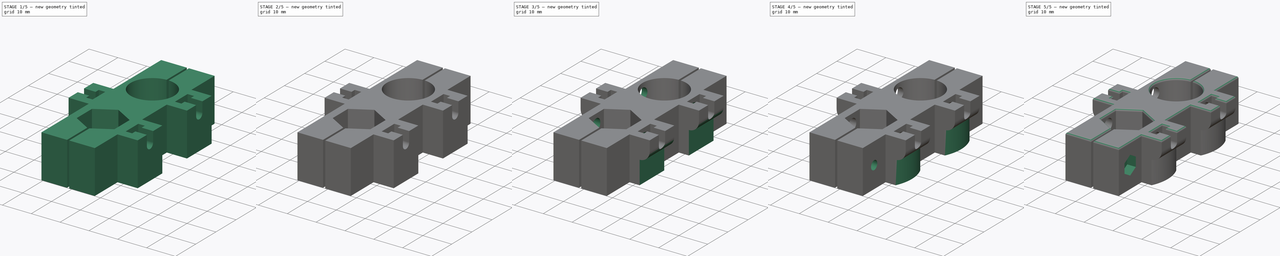
[diagram: build sequence overview — one tinted view per stage of 5, left to right]
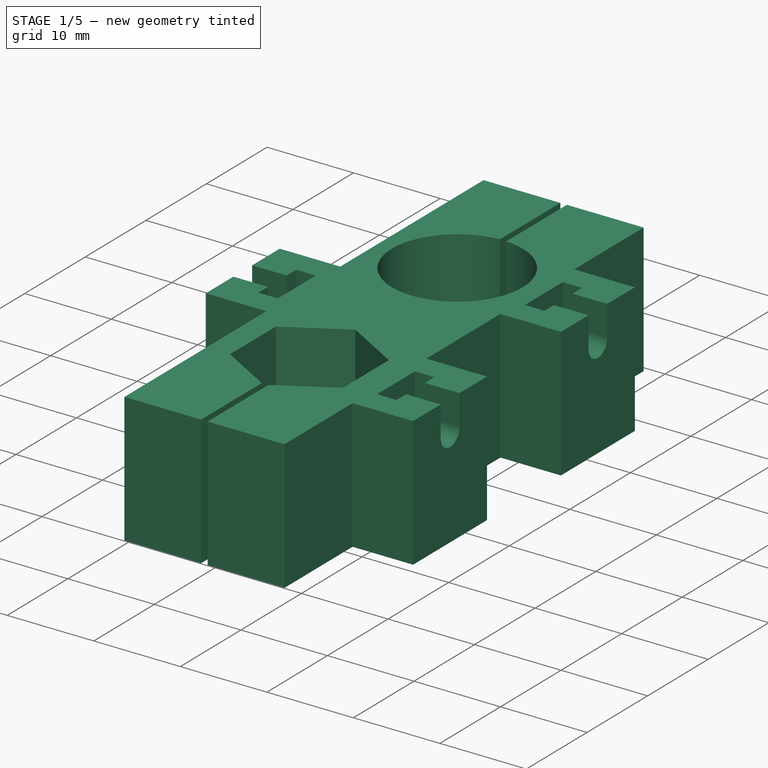
[diagram: stage 1 of 5 — iso view after this stage's code; geometry added in this stage tinted green]
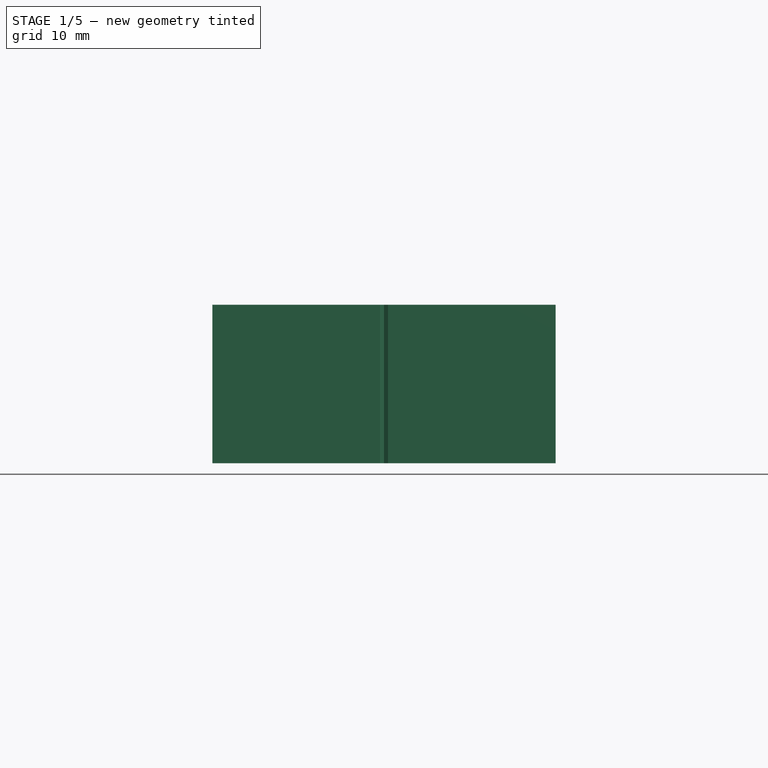
[diagram: stage 1 of 5 — front view after this stage's code; geometry added in this stage tinted green]
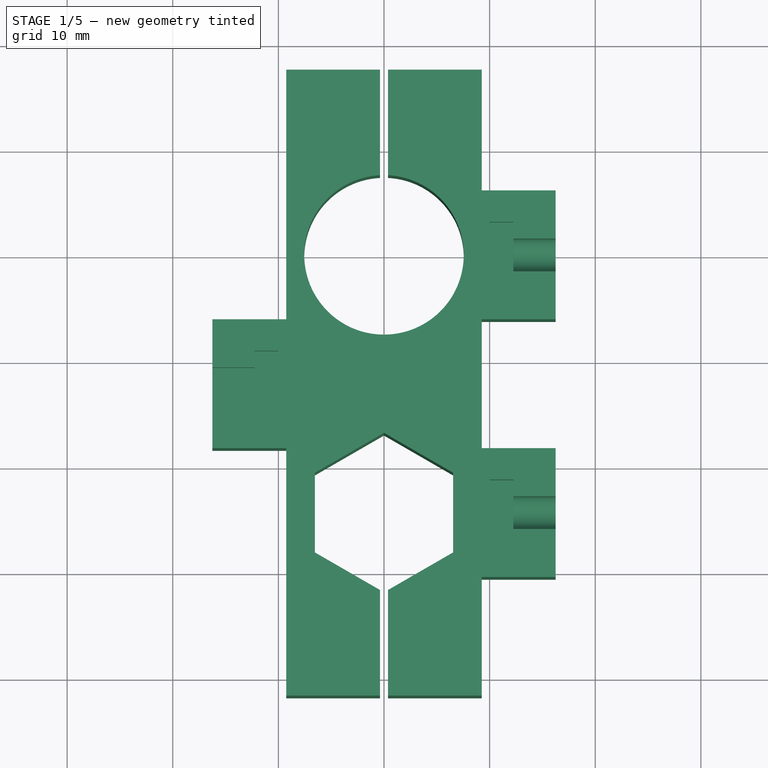
[diagram: stage 1 of 5 — top view after this stage's code; geometry added in this stage tinted green]
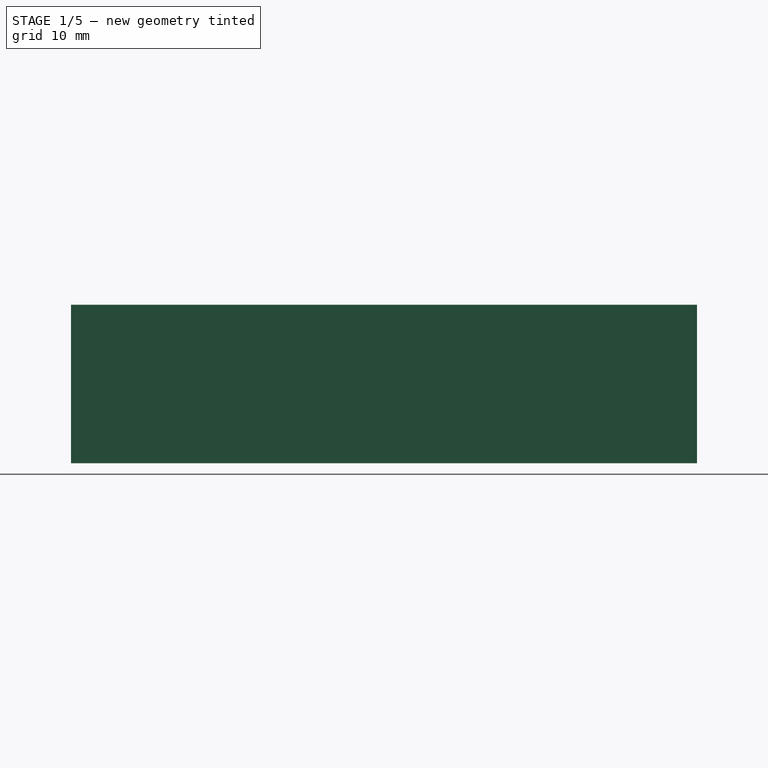
[diagram: stage 1 of 5 — right view after this stage's code; geometry added in this stage tinted green]
FCSTD DOCUMENT  (FreeCAD 0.16RUnknown)
Label: nut-and-bearing-mount.001
License: All rights reserved
LicenseURL: http://en.wikipedia.org/wiki/All_rights_reserved
objects: Sketcher::SketchObject×13, PartDesign::Pocket×11, Part::Extrusion×2, Part::MultiFuse×1, Part::Fillet×1
note: 39 computed .brp shape members not serialized (recipe doc carries the construction recipe); baked Part::Feature solids carry a one-line shape summary decoded from their .brp

FEATURE [Sketcher::SketchObject] Sketch
  sketch-geometry (41):
    g0: Circle [constr] CenterX=0 CenterY=-24.4 CenterZ=0 NormalX=0 NormalY=0 NormalZ=1 Radius=7.55
    g1: LineSegment StartX=-6.53849 StartY=-28.175 StartZ=0 EndX=-6.53849 EndY=-20.625 EndZ=0
    g2: LineSegment StartX=-6.53849 StartY=-20.625 StartZ=0 EndX=0 EndY=-16.85 EndZ=0
    g3: LineSegment StartX=0 StartY=-16.85 StartZ=0 EndX=6.53849 EndY=-20.625 EndZ=0
    g4: LineSegment StartX=6.53849 StartY=-20.625 StartZ=0 EndX=6.53849 EndY=-28.175 EndZ=0
    g5: LineSegment StartX=6.53849 StartY=-28.175 StartZ=0 EndX=0.375 EndY=-31.7335 EndZ=0
    g6: LineSegment [constr] StartX=0.375 StartY=-31.7335 StartZ=0 EndX=0 EndY=-31.95 EndZ=0
    g7: LineSegment [constr] StartX=0 StartY=-31.95 StartZ=0 EndX=-0.375 EndY=-31.7335 EndZ=0
    g8: LineSegment StartX=-0.375 StartY=-31.7335 StartZ=0 EndX=-6.53849 EndY=-28.175 EndZ=0
    g9: LineSegment [constr] StartX=-0.375 StartY=-31.7335 StartZ=0 EndX=0.375 EndY=-31.7335 EndZ=0
    g10: ArcOfCircle CenterX=0 CenterY=0 CenterZ=0 NormalX=0 NormalY=0 NormalZ=1 Radius=7.55 StartAngle=1.62049 EndAngle=7.80429
    g11: ArcOfCircle [constr] CenterX=0 CenterY=0 CenterZ=0 NormalX=0 NormalY=0 NormalZ=1 Radius=7.55 StartAngle=1.52111 EndAngle=1.62049
    g12: LineSegment [constr] StartX=-0.375 StartY=7.54068 StartZ=0 EndX=0.375 EndY=7.54068 EndZ=0
    g13: LineSegment StartX=-0.375 StartY=7.54068 StartZ=0 EndX=-0.375 EndY=17.5407 EndZ=0
    g14: LineSegment StartX=-0.375 StartY=17.5407 StartZ=0 EndX=-9.25 EndY=17.5407 EndZ=0
    g15: LineSegment StartX=-9.25 StartY=17.5407 StartZ=0 EndX=-9.25 EndY=-6.1 EndZ=0
    g16: LineSegment StartX=-9.25 StartY=-6.1 StartZ=0 EndX=-16.25 EndY=-6.1 EndZ=0
    g17: LineSegment StartX=-16.25 StartY=-6.1 StartZ=0 EndX=-16.25 EndY=-18.3 EndZ=0
    g18: LineSegment StartX=-16.25 StartY=-18.3 StartZ=0 EndX=-9.25 EndY=-18.3 EndZ=0
    g19: LineSegment StartX=-9.25 StartY=-18.3 StartZ=0 EndX=-9.25 EndY=-41.7335 EndZ=0
    g20: LineSegment StartX=-9.25 StartY=-41.7335 StartZ=0 EndX=-0.375 EndY=-41.7335 EndZ=0
    g21: LineSegment StartX=-0.375 StartY=-41.7335 StartZ=0 EndX=-0.375 EndY=-31.7335 EndZ=0
    g22: LineSegment StartX=0.375 StartY=7.54068 StartZ=0 EndX=0.375 EndY=17.5407 EndZ=0
    g23: LineSegment StartX=0.375 StartY=17.5407 StartZ=0 EndX=9.25 EndY=17.5407 EndZ=0
    g24: LineSegment StartX=9.25 StartY=17.5407 StartZ=0 EndX=9.25 EndY=6.1 EndZ=0
    g25: LineSegment StartX=9.25 StartY=6.1 StartZ=0 EndX=16.25 EndY=6.1 EndZ=0
    g26: LineSegment StartX=16.25 StartY=6.1 StartZ=0 EndX=16.25 EndY=-6.1 EndZ=0
    g27: LineSegment StartX=16.25 StartY=-6.1 StartZ=0 EndX=9.25 EndY=-6.1 EndZ=0
    g28: LineSegment StartX=9.25 StartY=-6.1 StartZ=0 EndX=9.25 EndY=-18.3 EndZ=0
    g29: LineSegment StartX=9.25 StartY=-18.3 StartZ=0 EndX=16.25 EndY=-18.3 EndZ=0
    g30: LineSegment StartX=16.25 StartY=-18.3 StartZ=0 EndX=16.25 EndY=-30.5 EndZ=0
    g31: LineSegment StartX=16.25 StartY=-30.5 StartZ=0 EndX=9.25 EndY=-30.5 EndZ=0
    g32: LineSegment StartX=9.25 StartY=-30.5 StartZ=0 EndX=9.25 EndY=-41.7335 EndZ=0
    g33: LineSegment StartX=9.25 StartY=-41.7335 StartZ=0 EndX=0.375 EndY=-41.7335 EndZ=0
    g34: LineSegment StartX=0.375 StartY=-41.7335 StartZ=0 EndX=0.375 EndY=-31.7335 EndZ=0
    g35: LineSegment [constr] StartX=-9.25 StartY=-6.1 StartZ=0 EndX=9.25 EndY=-6.1 EndZ=0
    g36: LineSegment [constr] StartX=9.25 StartY=-18.3 StartZ=0 EndX=-9.25 EndY=-18.3 EndZ=0
    g37: LineSegment [constr] StartX=9.25 StartY=6.1 StartZ=0 EndX=0 EndY=0 EndZ=0
    g38: LineSegment [constr] StartX=0 StartY=0 StartZ=0 EndX=9.25 EndY=-6.1 EndZ=0
    g39: LineSegment [constr] StartX=9.25 StartY=-18.3 StartZ=0 EndX=0 EndY=-24.4 EndZ=0
    g40: LineSegment [constr] StartX=0 StartY=-24.4 StartZ=0 EndX=9.25 EndY=-30.5 EndZ=0
  constraints (114):
    c: Vertical(g1)
    c: Coincident(g1,g2)
    c: Coincident(g2,g3)
    c: Coincident(g3,g4)
    c: Vertical(g4)
    c: Coincident(g4,g5)
    c: Coincident(g5,g6)
    c: Coincident(g6,g7)
    c: Coincident(g7,g8)
    c: Coincident(g1,g8)
    c: Horizontal(g9)
    c: Coincident(g5,g9)
    c: Coincident(g7,g9)
    c: Parallel(g7,g8)
    c: Parallel(g6,g5)
    c: PointOnObject(g1,g0)
    c: PointOnObject(g1,g0)
    c: PointOnObject(g2,g0)
    c: PointOnObject(g3,g0)
    c: PointOnObject(g4,g0)
    c: PointOnObject(g6,g0)
    c: Equal(g1,g2)
    c: Equal(g2,g3)
    c: Equal(g3,g4)
    c: Equal(g8,g5)
    c: PointOnObject(g0,g-2)
    c: DistanceX(g9,g9) = 0.75
    c: Coincident(g10,g11)
    c: Coincident(g10,g11)
    c: Coincident(g10,g11)
    c: Coincident(g10,g-1)
    c: Horizontal(g12)
    c: Coincident(g10,g12)
    c: Coincident(g10,g12)
    c: Equal(g12,g9)
    c: Radius(g10) = 7.55
    c: Equal(g10,g0)
    c: Vertical(g13)
    c: Coincident(g13,g14)
    c: Horizontal(g14)
    c: Coincident(g14,g15)
    c: Vertical(g15)
    c: Coincident(g15,g16)
    c: Horizontal(g16)
    c: Coincident(g16,g17)
    c: Vertical(g17)
    c: Coincident(g17,g18)
    c: Horizontal(g18)
    c: Coincident(g18,g19)
    c: Vertical(g19)
    c: Coincident(g19,g20)
    c: Horizontal(g20)
    c: Coincident(g20,g21)
    c: Vertical(g21)
    c: Coincident(g7,g21)
    c: Coincident(g10,g13)
    c: Vertical(g22)
    c: Coincident(g22,g23)
    c: Horizontal(g23)
    c: Coincident(g23,g24)
    c: Vertical(g24)
    c: Coincident(g24,g25)
    c: Horizontal(g25)
    c: Coincident(g25,g26)
    c: Vertical(g26)
    c: Coincident(g26,g27)
    c: Horizontal(g27)
    c: Coincident(g27,g28)
    c: Vertical(g28)
    c: Coincident(g28,g29)
    c: Horizontal(g29)
    c: Coincident(g29,g30)
    c: Vertical(g30)
    c: Coincident(g30,g31)
    c: Horizontal(g31)
    c: Coincident(g31,g32)
    c: Vertical(g32)
    c: Coincident(g32,g33)
    c: Coincident(g33,g34)
    c: Vertical(g34)
    c: Coincident(g5,g34)
    c: Horizontal(g33)
    c: Equal(g21,g34)
    c: Equal(g13,g22)
    c: Coincident(g10,g22)
    c: Equal(g30,g26)
    c: Equal(g26,g17)
    c: DistanceY(g26,g26) = 12.2
    c: Equal(g29,g25)
    c: Equal(g25,g16)
    c: DistanceX(g25,g25) = 7
    c: Horizontal(g35)
    c: Horizontal(g36)
    c: Coincident(g28,g36)
    c: Coincident(g27,g35)
    c: Coincident(g15,g35)
    c: Coincident(g18,g36)
    c: Equal(g18,g16)
    c: Equal(g29,g31)
    c: Equal(g25,g27)
    c: Coincident(g37,g38)
    c: Coincident(g39,g40)
    c: Equal(g40,g39)
    c: Equal(g38,g37)
    c: Coincident(g10,g37)
    c: Coincident(g24,g37)
    c: Coincident(g27,g38)
    c: Coincident(g28,g39)
    c: Coincident(g0,g39)
    c: Coincident(g31,g40)
    c: DistanceX(g36,g36) = 18.5
    c: Equal(g20,g33)
    c: Equal(g34,g22)
    c: DistanceY(g13,g13) = 10
FEATURE [Part::Extrusion] Extrude
  Base = -> Sketch
  Dir = (0,0,15)
  Solid = true
FEATURE [Sketcher::SketchObject] Sketch001
  ExternalGeometry = -> [Extrude]
  Placement = pos=(0,0,15) rot=(0,0,1;0rad)
  Support = -> Extrude [Face31]
  sketch-geometry (30):
    g0: LineSegment StartX=16.25 StartY=1.55 StartZ=0 EndX=12.25 EndY=1.55 EndZ=0
    g1: LineSegment StartX=12.25 StartY=1.55 StartZ=0 EndX=12.25 EndY=3.125 EndZ=0
    g2: LineSegment StartX=12.25 StartY=3.125 StartZ=0 EndX=10 EndY=3.125 EndZ=0
    g3: LineSegment StartX=10 StartY=3.125 StartZ=0 EndX=10 EndY=-3.125 EndZ=0
    g4: LineSegment StartX=10 StartY=-3.125 StartZ=0 EndX=12.25 EndY=-3.125 EndZ=0
    g5: LineSegment StartX=12.25 StartY=-3.125 StartZ=0 EndX=12.25 EndY=-1.55 EndZ=0
    g6: LineSegment StartX=12.25 StartY=-1.55 StartZ=0 EndX=16.25 EndY=-1.55 EndZ=0
    g7: LineSegment StartX=16.25 StartY=-1.55 StartZ=0 EndX=16.25 EndY=1.55 EndZ=0
    g8: LineSegment StartX=16.25 StartY=-22.85 StartZ=0 EndX=12.25 EndY=-22.85 EndZ=0
    g9: LineSegment StartX=12.25 StartY=-22.85 StartZ=0 EndX=12.25 EndY=-21.275 EndZ=0
    g10: LineSegment StartX=12.25 StartY=-21.275 StartZ=0 EndX=10 EndY=-21.275 EndZ=0
    g11: LineSegment StartX=10 StartY=-21.275 StartZ=0 EndX=10 EndY=-27.525 EndZ=0
    g12: LineSegment StartX=10 StartY=-27.525 StartZ=0 EndX=12.25 EndY=-27.525 EndZ=0
    g13: LineSegment StartX=12.25 StartY=-27.525 StartZ=0 EndX=12.25 EndY=-25.95 EndZ=0
    g14: LineSegment StartX=12.25 StartY=-25.95 StartZ=0 EndX=16.25 EndY=-25.95 EndZ=0
    g15: LineSegment StartX=16.25 StartY=-25.95 StartZ=0 EndX=16.25 EndY=-22.85 EndZ=0
    g16: LineSegment StartX=-16.25 StartY=-10.65 StartZ=0 EndX=-12.25 EndY=-10.65 EndZ=0
    g17: LineSegment StartX=-12.25 StartY=-10.65 StartZ=0 EndX=-12.25 EndY=-9.075 EndZ=0
    g18: LineSegment StartX=-12.25 StartY=-9.075 StartZ=0 EndX=-10 EndY=-9.075 EndZ=0
    g19: LineSegment StartX=-10 StartY=-9.075 StartZ=0 EndX=-10 EndY=-15.325 EndZ=0
    g20: LineSegment StartX=-10 StartY=-15.325 StartZ=0 EndX=-12.25 EndY=-15.325 EndZ=0
    g21: LineSegment StartX=-12.25 StartY=-15.325 StartZ=0 EndX=-12.25 EndY=-13.75 EndZ=0
    g22: LineSegment StartX=-12.25 StartY=-13.75 StartZ=0 EndX=-16.25 EndY=-13.75 EndZ=0
    g23: LineSegment StartX=-16.25 StartY=-13.75 StartZ=0 EndX=-16.25 EndY=-10.65 EndZ=0
    g24: LineSegment [constr] StartX=-16.25 StartY=-10.65 StartZ=0 EndX=-16.25 EndY=-6.1 EndZ=0
    g25: LineSegment [constr] StartX=-16.25 StartY=-13.75 StartZ=0 EndX=-16.25 EndY=-18.3 EndZ=0
    g26: LineSegment [constr] StartX=16.25 StartY=-22.85 StartZ=0 EndX=16.25 EndY=-18.3 EndZ=0
    g27: LineSegment [constr] StartX=16.25 StartY=-25.95 StartZ=0 EndX=16.25 EndY=-30.5 EndZ=0
    g28: LineSegment [constr] StartX=16.25 StartY=-1.55 StartZ=0 EndX=16.25 EndY=-6.1 EndZ=0
    g29: LineSegment [constr] StartX=16.25 StartY=1.55 StartZ=0 EndX=16.25 EndY=6.1 EndZ=0
  constraints (84):
    c: Horizontal(g0)
    c: Coincident(g0,g1)
    c: Vertical(g1)
    c: Coincident(g1,g2)
    c: Coincident(g2,g3)
    c: Vertical(g3)
    c: Coincident(g3,g4)
    c: Horizontal(g4)
    c: Coincident(g4,g5)
    c: Vertical(g5)
    c: Coincident(g5,g6)
    c: Horizontal(g6)
    c: Coincident(g6,g7)
    c: Vertical(g7)
    c: Horizontal(g2)
    c: Coincident(g0,g7)
    c: Horizontal(g8)
    c: Coincident(g8,g9)
    c: Vertical(g9)
    c: Coincident(g9,g10)
    c: Horizontal(g10)
    c: Coincident(g10,g11)
    c: Vertical(g11)
    c: Coincident(g11,g12)
    c: Horizontal(g12)
    c: Coincident(g12,g13)
    c: Vertical(g13)
    c: Coincident(g13,g14)
    c: Horizontal(g14)
    c: Coincident(g14,g15)
    c: Coincident(g8,g15)
    c: Vertical(g15)
    c: Horizontal(g16)
    c: Coincident(g16,g17)
    c: Vertical(g17)
    c: Coincident(g17,g18)
    c: Horizontal(g18)
    c: Coincident(g18,g19)
    c: Vertical(g19)
    c: Coincident(g19,g20)
    c: Coincident(g20,g21)
    c: Vertical(g21)
    c: Coincident(g21,g22)
    c: Horizontal(g22)
    c: Coincident(g22,g23)
    c: Vertical(g23)
    c: Coincident(g16,g23)
    c: Horizontal(g20)
    c: Coincident(g24,g-5)
    c: Coincident(g16,g24)
    c: Coincident(g22,g25)
    c: Coincident(g25,g-5)
    c: Coincident(g26,g-4)
    c: Coincident(g8,g26)
    c: Coincident(g14,g27)
    c: Coincident(g27,g-4)
    c: Coincident(g28,g-3)
    c: Coincident(g29,g-3)
    c: Coincident(g0,g29)
    c: Coincident(g6,g28)
    c: Equal(g28,g29)
    c: Equal(g24,g25)
    c: Equal(g26,g27)
    c: Equal(g15,g23)
    c: Equal(g23,g7)
    c: DistanceY(g7,g7) = 3.1
    c: PointOnObject(g0,g-3)
    c: PointOnObject(g16,g-5)
    c: PointOnObject(g8,g-4)
    c: Equal(g16,g22)
    c: Equal(g8,g14)
    c: Equal(g0,g6)
    c: Equal(g0,g16)
    c: Equal(g0,g8)
    c: DistanceX(g0,g0) = 4
    c: Equal(g17,g21)
    c: Equal(g5,g1)
    c: Equal(g9,g13)
    c: Equal(g3,g19)
    c: Equal(g3,g11)
    c: DistanceY(g3,g3) = 6.25
    c: DistanceX(g4,g4) = 2.25
    c: Equal(g2,g18)
    c: Equal(g2,g10)
FEATURE [PartDesign::Pocket] Pocket
  Length = 3.5
  Sketch = -> Sketch001
  Type = 0
FEATURE [Sketcher::SketchObject] Sketch002
  ExternalGeometry = -> [Pocket]
  Placement = pos=(16.25,0,0) rot=(0.57735,0.57735,0.57735;2.0944rad)
  Support = -> Pocket [Face24]
  sketch-geometry (4):
    g0: LineSegment StartX=-25.95 StartY=11.5 StartZ=0 EndX=-22.85 EndY=11.5 EndZ=0
    g1: LineSegment StartX=-1.55 StartY=11.5 StartZ=0 EndX=1.55 EndY=11.5 EndZ=0
    g2: ArcOfCircle CenterX=-24.4 CenterY=11.5 CenterZ=0 NormalX=0 NormalY=0 NormalZ=1 Radius=1.55 StartAngle=3.14159 EndAngle=6.28319
    g3: ArcOfCircle CenterX=0 CenterY=11.5 CenterZ=0 NormalX=0 NormalY=0 NormalZ=1 Radius=1.55 StartAngle=3.14159 EndAngle=6.28319
  constraints (12):
    c: Horizontal(g0)
    c: Horizontal(g1)
    c: PointOnObject(g2,g-3)
    c: PointOnObject(g3,g-4)
    c: Coincident(g1,g3)
    c: Coincident(g1,g-4)
    c: Coincident(g1,g3)
    c: Coincident(g1,g-4)
    c: Coincident(g0,g2)
    c: Coincident(g0,g-3)
    c: Coincident(g0,g2)
    c: Coincident(g0,g-3)
FEATURE [PartDesign::Pocket] Pocket001
  Length = 0
  Sketch = -> Sketch002
  Type = 3
  UpToFace = -> Pocket [Face40]
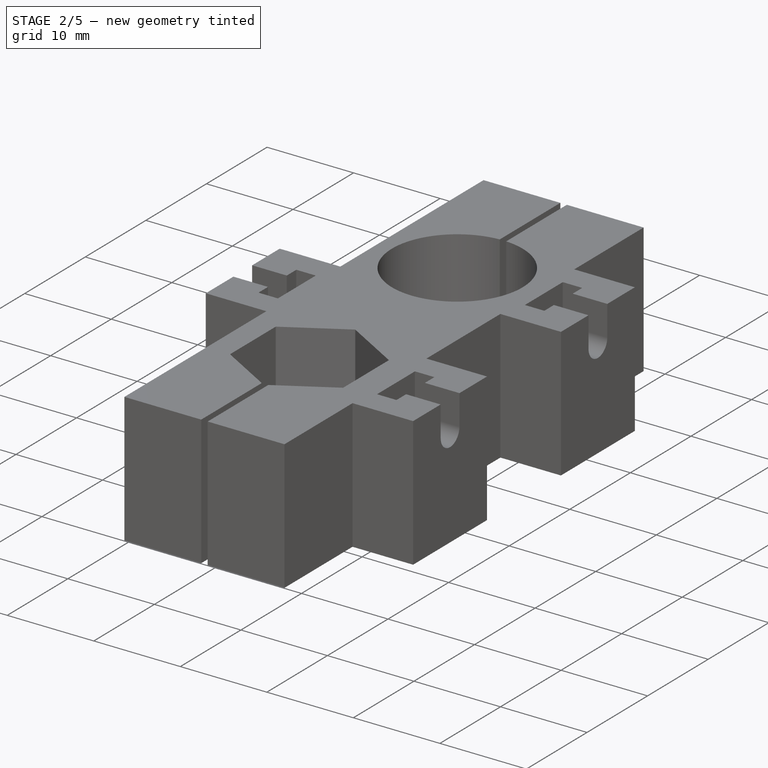
[diagram: stage 2 of 5 — iso view after this stage's code; geometry added in this stage tinted green]
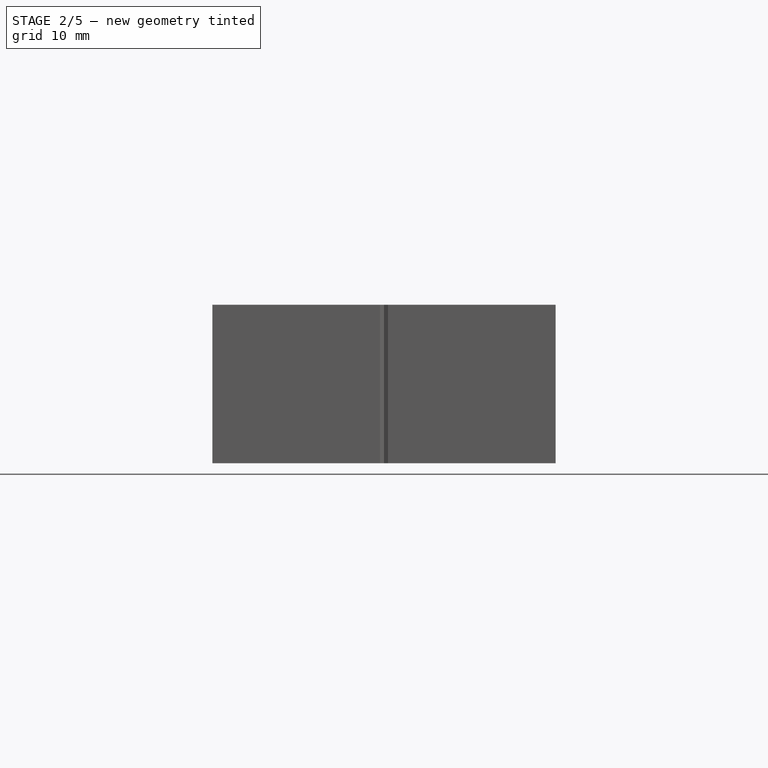
[diagram: stage 2 of 5 — front view after this stage's code; geometry added in this stage tinted green]
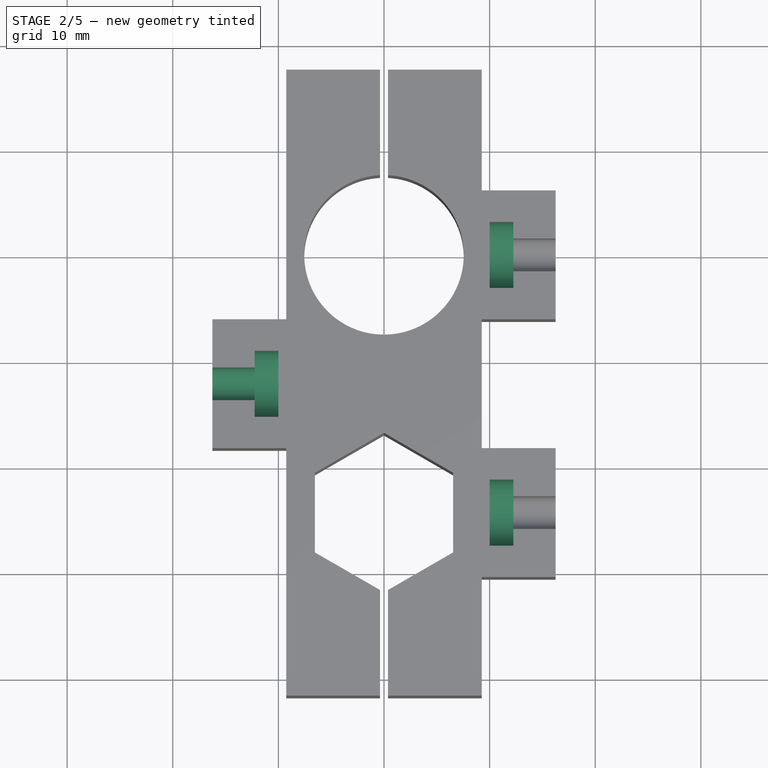
[diagram: stage 2 of 5 — top view after this stage's code; geometry added in this stage tinted green]
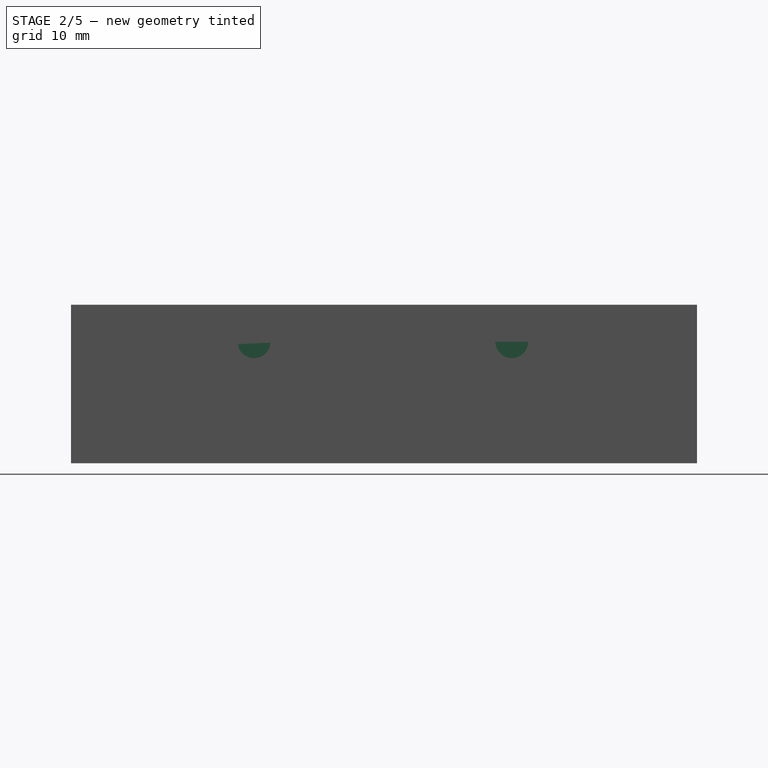
[diagram: stage 2 of 5 — right view after this stage's code; geometry added in this stage tinted green]
FEATURE [Sketcher::SketchObject] Sketch003
  ExternalGeometry = -> [Pocket001]
  Placement = pos=(-16.25,0,0) rot=(0.57735,-0.57735,-0.57735;2.0944rad)
  Support = -> Pocket001 [Face9]
  sketch-geometry (2):
    g0: LineSegment StartX=10.65 StartY=11.5 StartZ=0 EndX=13.75 EndY=11.5 EndZ=0
    g1: ArcOfCircle CenterX=12.2 CenterY=11.5 CenterZ=0 NormalX=0 NormalY=0 NormalZ=1 Radius=1.55 StartAngle=3.14159 EndAngle=6.28319
  constraints (6):
    c: Horizontal(g0)
    c: PointOnObject(g1,g-3)
    c: Coincident(g0,g1)
    c: Coincident(g0,g-3)
    c: Coincident(g0,g1)
    c: Coincident(g0,g-3)
FEATURE [PartDesign::Pocket] Pocket002
  Length = 0
  Sketch = -> Sketch003
  Type = 3
  UpToFace = -> Pocket001 [Face47]
FEATURE [Sketcher::SketchObject] Sketch004
  ExternalGeometry = -> [Pocket002]
  Placement = pos=(-10,0,0) rot=(0.57735,-0.57735,-0.57735;2.0944rad)
  Support = -> Pocket002 [Face49]
  sketch-geometry (2):
    g0: LineSegment StartX=9.075 StartY=11.5 StartZ=0 EndX=15.325 EndY=11.5 EndZ=0
    g1: ArcOfCircle CenterX=12.2 CenterY=11.5 CenterZ=0 NormalX=0 NormalY=0 NormalZ=1 Radius=3.125 StartAngle=3.14159 EndAngle=6.28319
  constraints (6):
    c: Horizontal(g0)
    c: PointOnObject(g1,g-3)
    c: Coincident(g0,g1)
    c: Coincident(g0,g-3)
    c: Coincident(g0,g1)
    c: Coincident(g0,g-3)
FEATURE [PartDesign::Pocket] Pocket003
  Length = 0
  Sketch = -> Sketch004
  Type = 3
  UpToFace = -> Pocket002 [Face51]
FEATURE [Sketcher::SketchObject] Sketch005
  ExternalGeometry = -> [Pocket003]
  Placement = pos=(10,0,0) rot=(0.57735,0.57735,0.57735;2.0944rad)
  Support = -> Pocket003 [Face42]
  sketch-geometry (4):
    g0: LineSegment StartX=-27.525 StartY=11.5 StartZ=0 EndX=-21.275 EndY=11.5 EndZ=0
    g1: LineSegment StartX=-3.125 StartY=11.5 StartZ=0 EndX=3.125 EndY=11.5 EndZ=0
    g2: ArcOfCircle CenterX=-24.4 CenterY=11.5 CenterZ=0 NormalX=0 NormalY=0 NormalZ=1 Radius=3.125 StartAngle=3.14159 EndAngle=6.28319
    g3: ArcOfCircle CenterX=0 CenterY=11.5 CenterZ=0 NormalX=0 NormalY=0 NormalZ=1 Radius=3.125 StartAngle=3.14159 EndAngle=6.28319
  constraints (12):
    c: Horizontal(g0)
    c: Horizontal(g1)
    c: PointOnObject(g2,g-3)
    c: PointOnObject(g3,g-4)
    c: Coincident(g1,g3)
    c: Coincident(g1,g-4)
    c: Coincident(g1,g3)
    c: Coincident(g1,g-4)
    c: Coincident(g0,g2)
    c: Coincident(g0,g-3)
    c: Coincident(g0,g2)
    c: Coincident(g0,g-3)
FEATURE [PartDesign::Pocket] Pocket004
  Length = 0
  Sketch = -> Sketch005
  Type = 3
  UpToFace = -> Pocket003 [Face33]
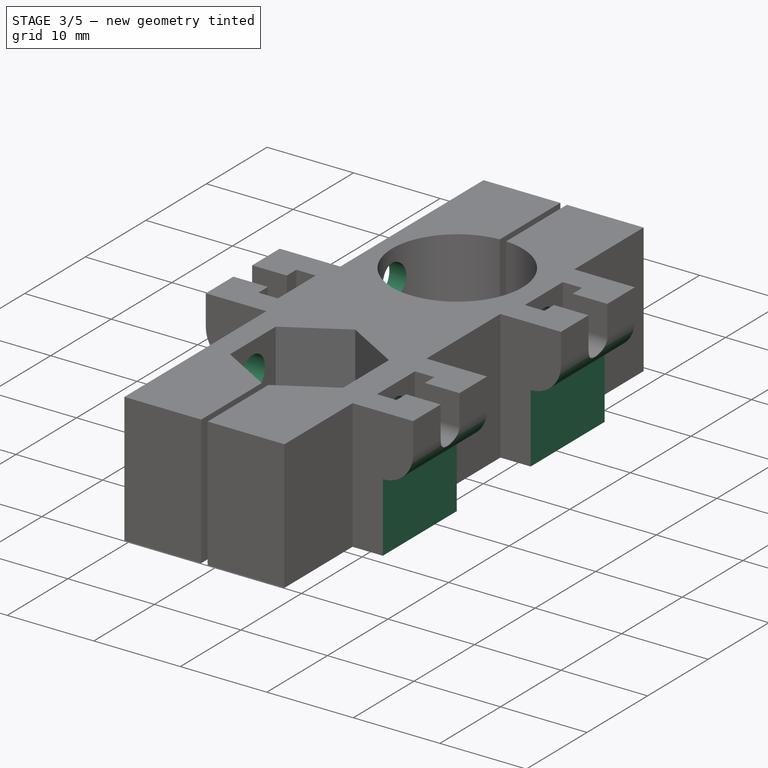
[diagram: stage 3 of 5 — iso view after this stage's code; geometry added in this stage tinted green]
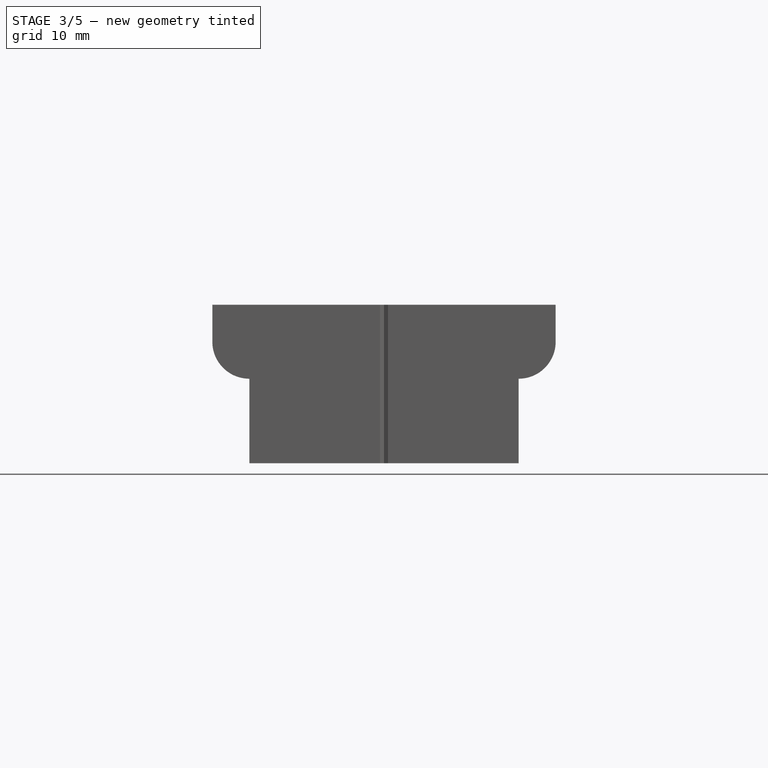
[diagram: stage 3 of 5 — front view after this stage's code; geometry added in this stage tinted green]
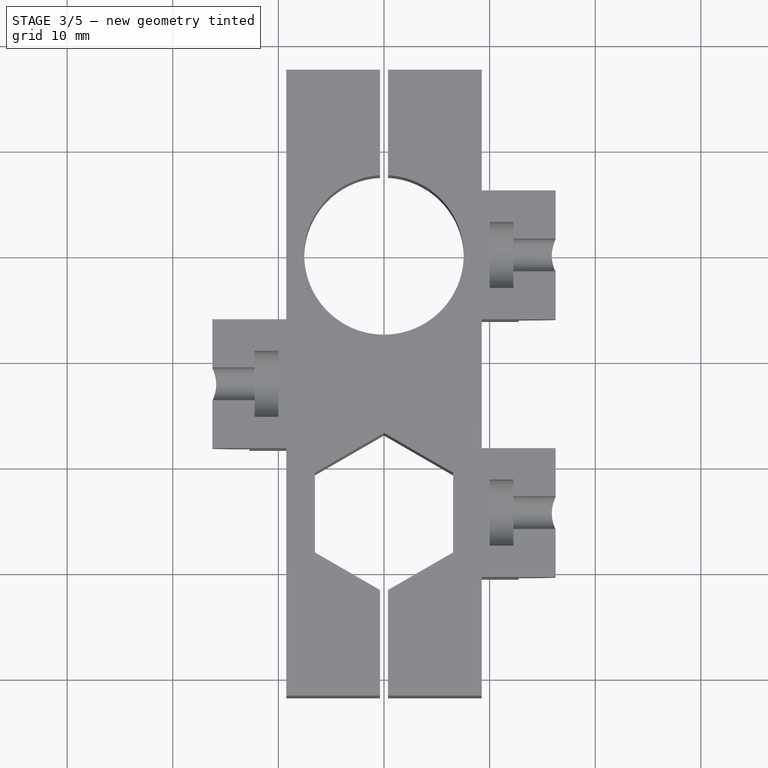
[diagram: stage 3 of 5 — top view after this stage's code; geometry added in this stage tinted green]
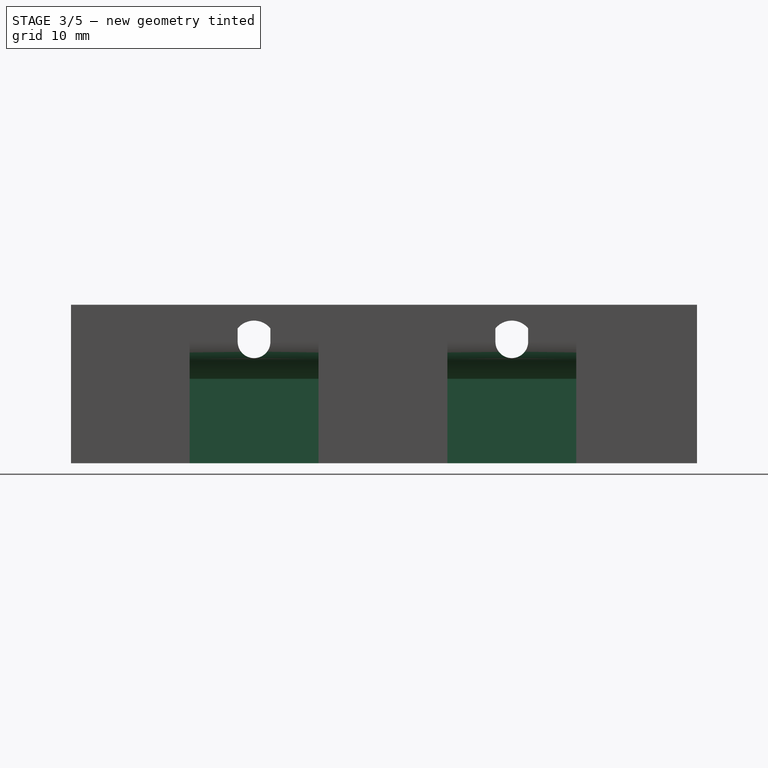
[diagram: stage 3 of 5 — right view after this stage's code; geometry added in this stage tinted green]
FEATURE [Sketcher::SketchObject] Sketch006
  ExternalGeometry = -> [Pocket004]
  Placement = pos=(10,0,0) rot=(0.57735,0.57735,0.57735;2.0944rad)
  Support = -> Pocket004 [Face61]
  sketch-geometry (2):
    g0: Circle CenterX=-24.4 CenterY=11.5 CenterZ=0 NormalX=0 NormalY=0 NormalZ=1 Radius=2
    g1: Circle CenterX=0 CenterY=11.5 CenterZ=0 NormalX=0 NormalY=0 NormalZ=1 Radius=2
  constraints (4):
    c: Equal(g1,g0)
    c: Coincident(g0,g-3)
    c: Coincident(g1,g-4)
    c: Radius(g0) = 2
FEATURE [PartDesign::Pocket] Pocket005
  Length = 5
  Sketch = -> Sketch006
  Type = 1
FEATURE [Sketcher::SketchObject] Sketch007
  ExternalGeometry = -> [Pocket005]
  Placement = pos=(0,-30.5,0) rot=(1,0,0;1.5708rad)
  Support = -> Pocket005 [Face25]
  sketch-geometry (7):
    g0: LineSegment [constr] StartX=16.25 StartY=15 StartZ=0 EndX=16.25 EndY=11.5 EndZ=0
    g1: LineSegment [constr] StartX=16.25 StartY=11.5 StartZ=0 EndX=12.75 EndY=11.5 EndZ=0
    g2: LineSegment [constr] StartX=12.75 StartY=11.5 StartZ=0 EndX=12.75 EndY=8 EndZ=0
    g3: LineSegment StartX=12.75 StartY=8 StartZ=0 EndX=12.75 EndY=0 EndZ=0
    g4: LineSegment StartX=12.75 StartY=0 StartZ=0 EndX=16.25 EndY=0 EndZ=0
    g5: LineSegment StartX=16.25 StartY=0 StartZ=0 EndX=16.25 EndY=11.5 EndZ=0
    g6: ArcOfCircle CenterX=12.75 CenterY=11.5 CenterZ=0 NormalX=0 NormalY=0 NormalZ=1 Radius=3.5 StartAngle=4.71239 EndAngle=6.28319
  constraints (19):
    c: Vertical(g0)
    c: Coincident(g0,g1)
    c: Horizontal(g1)
    c: Coincident(g1,g2)
    c: Vertical(g2)
    c: Coincident(g2,g3)
    c: Vertical(g3)
    c: Coincident(g3,g4)
    c: Horizontal(g4)
    c: Coincident(g4,g5)
    c: Vertical(g5)
    c: Coincident(g0,g5)
    c: Coincident(g1,g6)
    c: Coincident(g2,g6)
    c: Coincident(g0,g6)
    c: Coincident(g0,g-3)
    c: Equal(g0,g2)
    c: DistanceY(g2,g0) = 7
    c: Coincident(g4,g-4)
FEATURE [PartDesign::Pocket] Pocket006
  Length = 5
  Sketch = -> Sketch007
  Type = 1
FEATURE [Sketcher::SketchObject] Sketch008
  ExternalGeometry = -> [Pocket006]
  Placement = pos=(0,-18.3,0) rot=(1,0,0;1.5708rad)
  Support = -> Pocket006 [Face31]
  sketch-geometry (7):
    g0: LineSegment [constr] StartX=-16.25 StartY=15 StartZ=0 EndX=-16.25 EndY=11.5 EndZ=0
    g1: LineSegment [constr] StartX=-16.25 StartY=11.5 StartZ=0 EndX=-12.75 EndY=11.5 EndZ=0
    g2: LineSegment [constr] StartX=-12.75 StartY=11.5 StartZ=0 EndX=-12.75 EndY=8 EndZ=0
    g3: LineSegment StartX=-12.75 StartY=8 StartZ=0 EndX=-12.75 EndY=0 EndZ=0
    g4: LineSegment StartX=-12.75 StartY=0 StartZ=0 EndX=-16.25 EndY=0 EndZ=0
    g5: LineSegment StartX=-16.25 StartY=0 StartZ=0 EndX=-16.25 EndY=11.5 EndZ=0
    g6: ArcOfCircle CenterX=-12.75 CenterY=11.5 CenterZ=0 NormalX=0 NormalY=0 NormalZ=1 Radius=3.5 StartAngle=3.14159 EndAngle=4.71239
  constraints (19):
    c: Vertical(g0)
    c: Coincident(g0,g1)
    c: Horizontal(g1)
    c: Coincident(g1,g2)
    c: Vertical(g2)
    c: Coincident(g2,g3)
    c: Vertical(g3)
    c: Coincident(g3,g4)
    c: Horizontal(g4)
    c: Coincident(g4,g5)
    c: Vertical(g5)
    c: Coincident(g0,g5)
    c: Coincident(g1,g6)
    c: Coincident(g2,g6)
    c: Coincident(g0,g6)
    c: Equal(g0,g2)
    c: Coincident(g0,g-3)
    c: Coincident(g4,g-4)
    c: DistanceY(g2,g0) = 7
FEATURE [PartDesign::Pocket] Pocket007
  Length = 5
  Sketch = -> Sketch008
  Type = 1
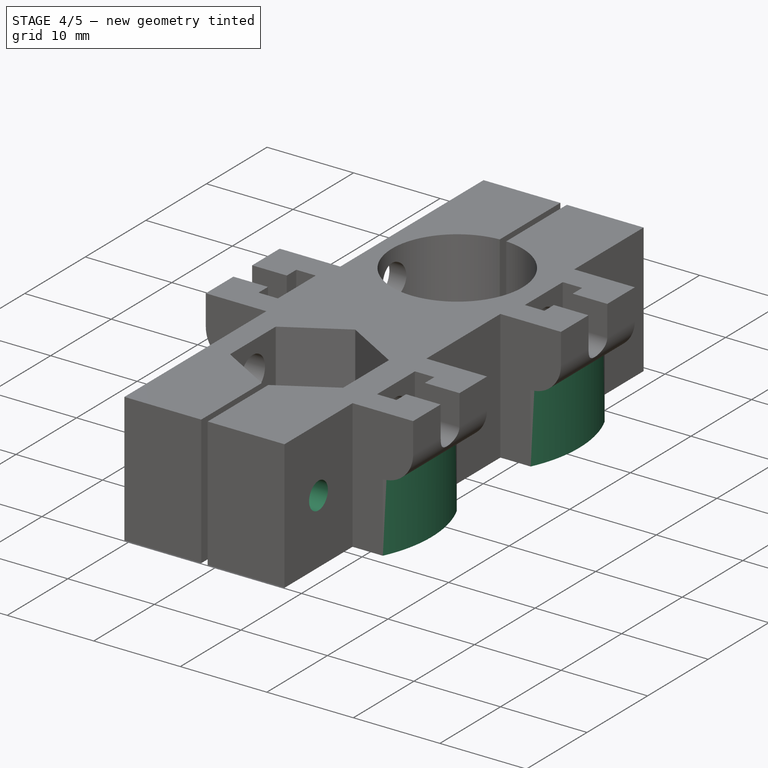
[diagram: stage 4 of 5 — iso view after this stage's code; geometry added in this stage tinted green]
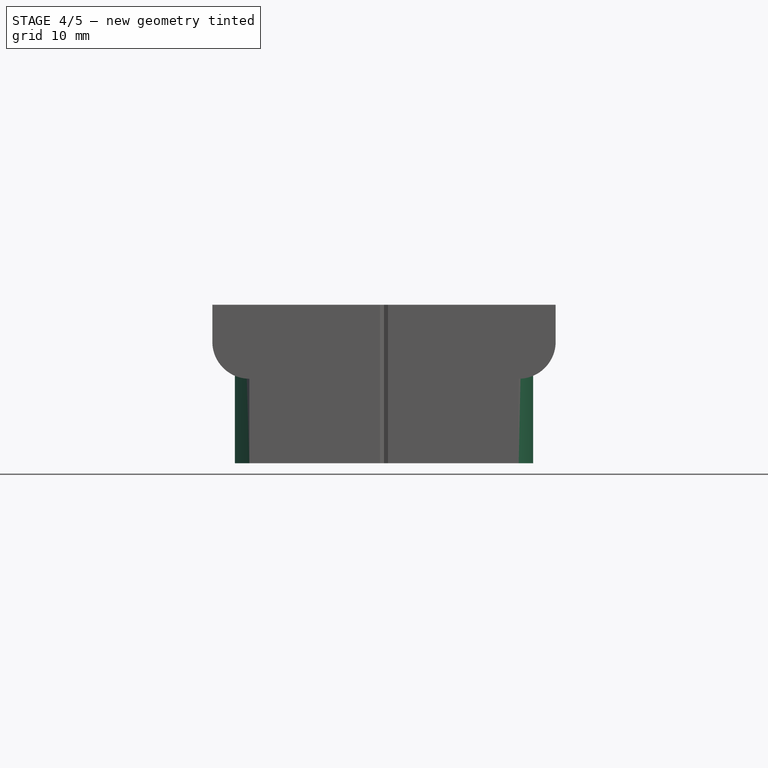
[diagram: stage 4 of 5 — front view after this stage's code; geometry added in this stage tinted green]
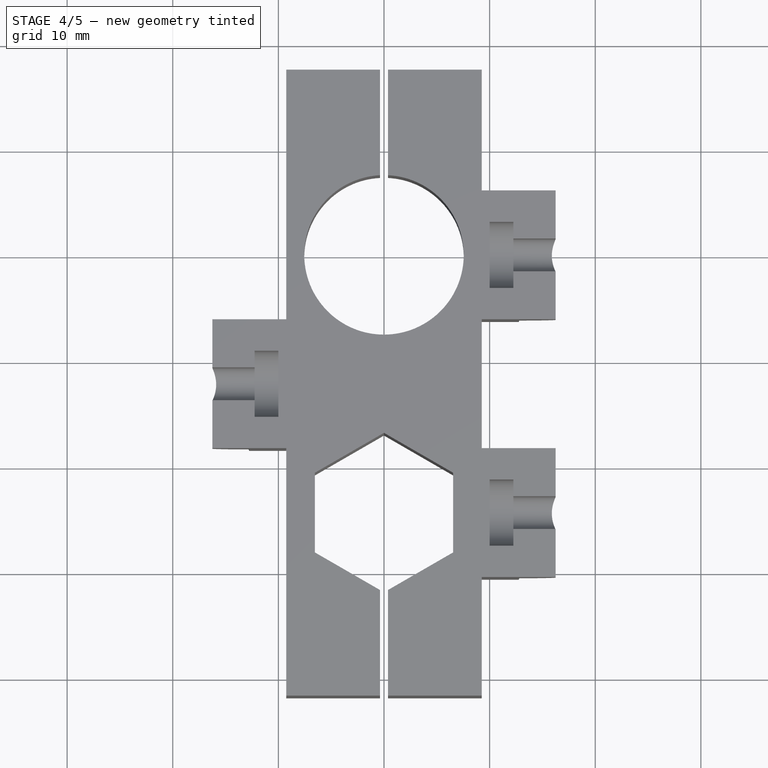
[diagram: stage 4 of 5 — top view after this stage's code; geometry added in this stage tinted green]
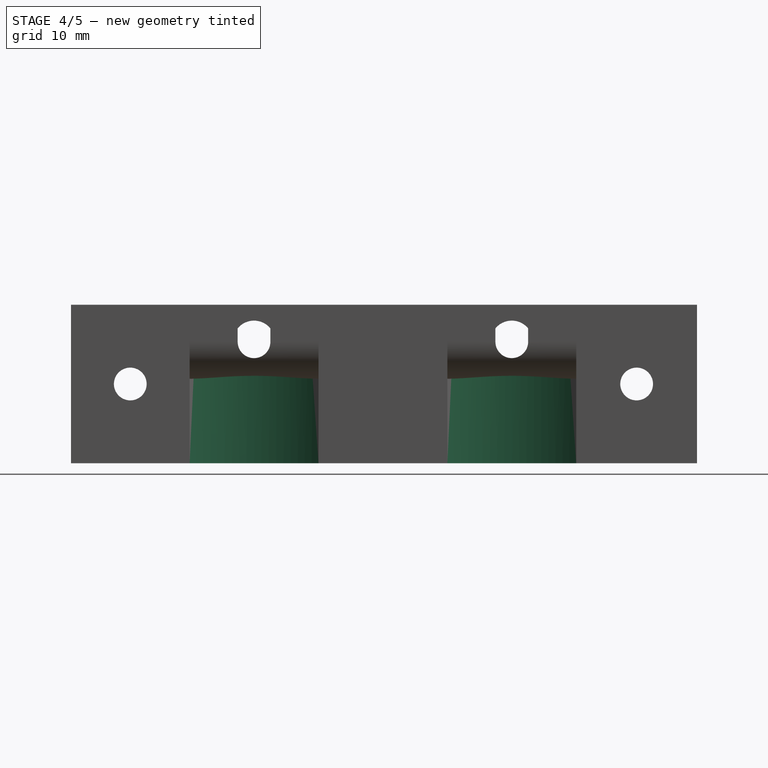
[diagram: stage 4 of 5 — right view after this stage's code; geometry added in this stage tinted green]
FEATURE [Sketcher::SketchObject] Sketch009
  ExternalGeometry = -> [Pocket007]
  Placement = pos=(0,0,0) rot=(1,0,0;3.14159rad)
  Support = -> Pocket007 [Face4]
  sketch-geometry (6):
    g0: LineSegment StartX=-12.75 StartY=18.3 StartZ=0 EndX=-12.75 EndY=6.1 EndZ=0
    g1: LineSegment StartX=12.75 StartY=18.3 StartZ=0 EndX=12.75 EndY=30.5 EndZ=0
    g2: ArcOfCircle CenterX=0.183677 CenterY=12.2 CenterZ=0 NormalX=0 NormalY=0 NormalZ=1 Radius=14.3 StartAngle=2.70089 EndAngle=3.58229
    g3: ArcOfCircle CenterX=-0.183677 CenterY=24.4 CenterZ=0 NormalX=0 NormalY=0 NormalZ=1 Radius=14.3 StartAngle=5.84248 EndAngle=6.72389
    g4: LineSegment StartX=12.75 StartY=6.1 StartZ=0 EndX=12.75 EndY=-6.1 EndZ=0
    g5: ArcOfCircle CenterX=-0.183677 CenterY=0 CenterZ=0 NormalX=0 NormalY=0 NormalZ=1 Radius=14.3 StartAngle=5.84248 EndAngle=6.72389
  constraints (18):
    c: Vertical(g0)
    c: Vertical(g1)
    c: Coincident(g0,g2)
    c: Coincident(g0,g-4)
    c: Coincident(g0,g2)
    c: Coincident(g0,g-4)
    c: Coincident(g1,g3)
    c: Coincident(g1,g-3)
    c: Coincident(g1,g3)
    c: Coincident(g1,g-3)
    c: Vertical(g4)
    c: Coincident(g4,g5)
    c: Coincident(g4,g-5)
    c: Coincident(g4,g5)
    c: Coincident(g4,g-5)
    c: Equal(g3,g5)
    c: Equal(g5,g2)
    c: Radius(g3) = 14.3
FEATURE [Part::Extrusion] Extrude001
  Base = -> Sketch009
  Dir = (0,0,8.5)
  Solid = true
FEATURE [Part::MultiFuse] Fusion
  Shapes = -> [Extrude001,Pocket007]
FEATURE [Sketcher::SketchObject] Sketch010
  ExternalGeometry = -> [Fusion]
  Placement = pos=(9.25,0,0) rot=(0.57735,0.57735,0.57735;2.0944rad)
  Support = -> Fusion [Face27]
  sketch-geometry (6):
    g0: LineSegment [constr] StartX=-30.5 StartY=15 StartZ=0 EndX=-36.1167 EndY=7.5 EndZ=0
    g1: LineSegment [constr] StartX=-36.1167 StartY=7.5 StartZ=0 EndX=-41.7335 EndY=0 EndZ=0
    g2: LineSegment [constr] StartX=6.1 StartY=15 StartZ=0 EndX=11.8203 EndY=7.5 EndZ=0
    g3: LineSegment [constr] StartX=11.8203 StartY=7.5 StartZ=0 EndX=17.5407 EndY=0 EndZ=0
    g4: Circle CenterX=-36.1167 CenterY=7.5 CenterZ=0 NormalX=0 NormalY=0 NormalZ=1 Radius=1.55
    g5: Circle CenterX=11.8203 CenterY=7.5 CenterZ=0 NormalX=0 NormalY=0 NormalZ=1 Radius=1.55
  constraints (14):
    c: Coincident(g0,g1)
    c: Coincident(g2,g3)
    c: Coincident(g0,g-5)
    c: Coincident(g1,g-3)
    c: Coincident(g2,g-6)
    c: Coincident(g3,g-4)
    c: Parallel(g1,g0)
    c: Parallel(g2,g3)
    c: Equal(g2,g3)
    c: Equal(g0,g1)
    c: Coincident(g2,g5)
    c: Coincident(g0,g4)
    c: Equal(g4,g5)
    c: Radius(g4) = 1.55
FEATURE [PartDesign::Pocket] Pocket008
  Length = 5
  Sketch = -> Sketch010
  Type = 1
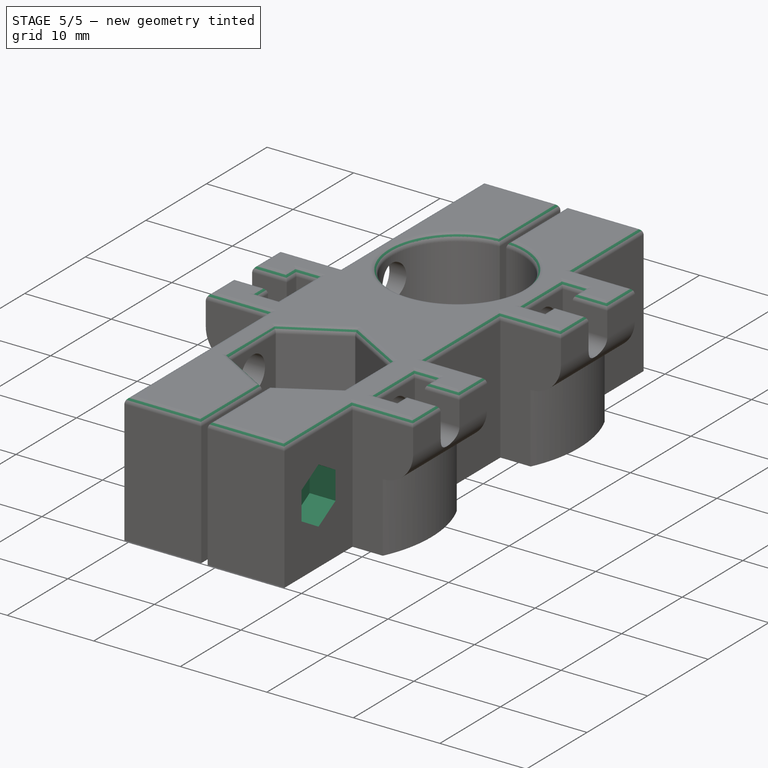
[diagram: stage 5 of 5 — iso view after this stage's code; geometry added in this stage tinted green]
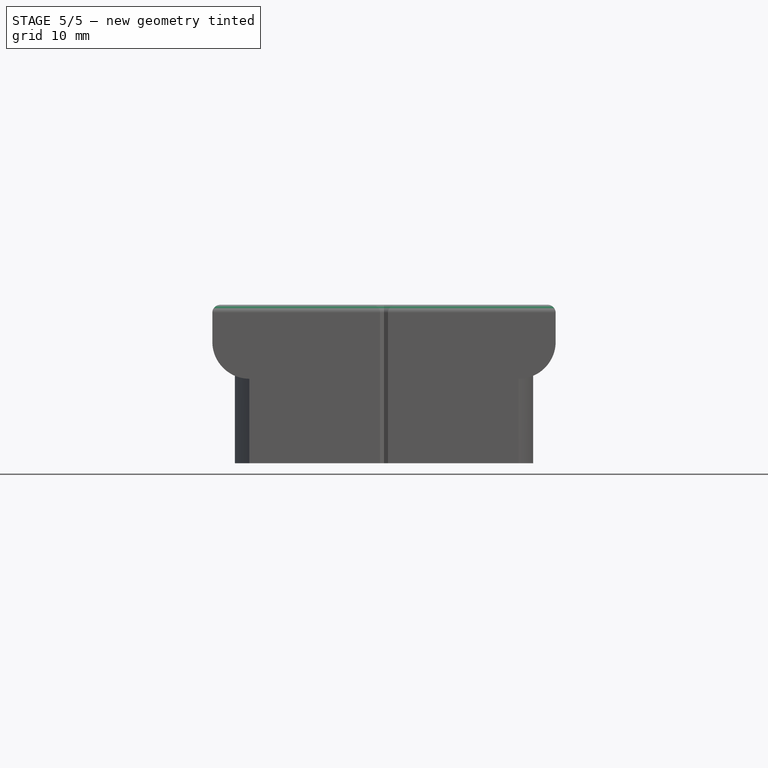
[diagram: stage 5 of 5 — front view after this stage's code; geometry added in this stage tinted green]
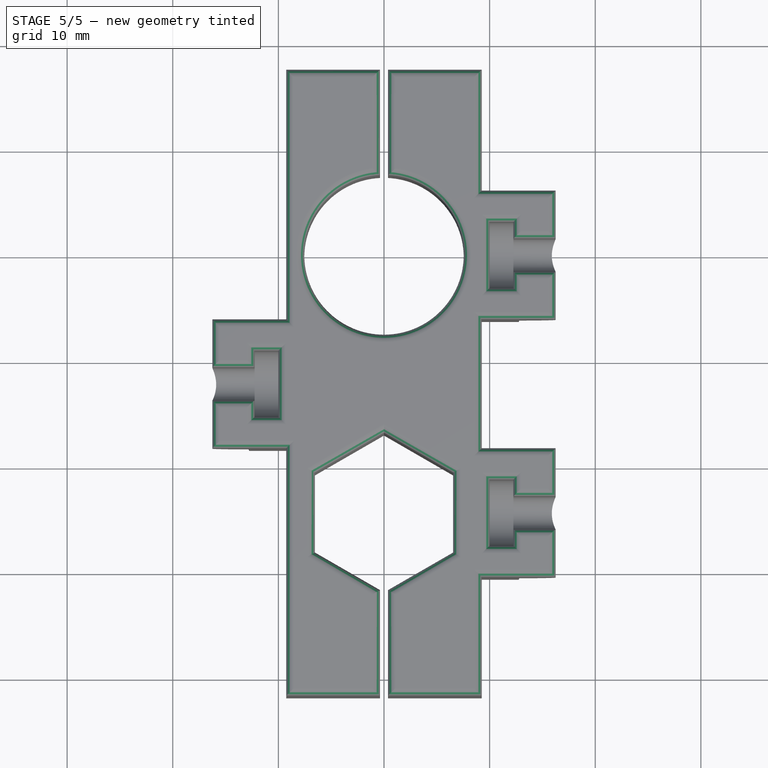
[diagram: stage 5 of 5 — top view after this stage's code; geometry added in this stage tinted green]
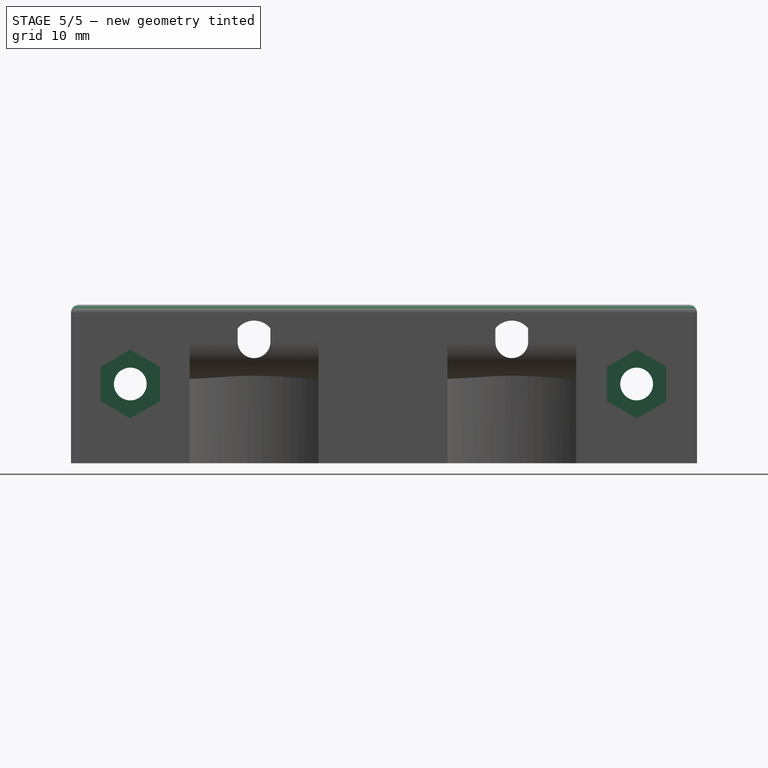
[diagram: stage 5 of 5 — right view after this stage's code; geometry added in this stage tinted green]
FEATURE [Sketcher::SketchObject] Sketch011
  ExternalGeometry = -> [Pocket008]
  Placement = pos=(9.25,0,0) rot=(0.57735,0.57735,0.57735;2.0944rad)
  Support = -> Pocket008 [Face28]
  sketch-geometry (14):
    g0: LineSegment StartX=-36.1167 StartY=10.75 StartZ=0 EndX=-38.9313 EndY=9.125 EndZ=0
    g1: LineSegment StartX=-38.9313 StartY=9.125 StartZ=0 EndX=-38.9313 EndY=5.875 EndZ=0
    g2: LineSegment StartX=-38.9313 StartY=5.875 StartZ=0 EndX=-36.1167 EndY=4.25 EndZ=0
    g3: LineSegment StartX=-36.1167 StartY=4.25 StartZ=0 EndX=-33.3022 EndY=5.875 EndZ=0
    g4: LineSegment StartX=-33.3022 StartY=5.875 StartZ=0 EndX=-33.3022 EndY=9.125 EndZ=0
    g5: LineSegment StartX=-33.3022 StartY=9.125 StartZ=0 EndX=-36.1167 EndY=10.75 EndZ=0
    g6: Circle [constr] CenterX=-36.1167 CenterY=7.5 CenterZ=0 NormalX=0 NormalY=0 NormalZ=1 Radius=3.25
    g7: LineSegment StartX=11.8203 StartY=10.75 StartZ=0 EndX=9.00576 EndY=9.125 EndZ=0
    g8: LineSegment StartX=9.00576 StartY=9.125 StartZ=0 EndX=9.00576 EndY=5.875 EndZ=0
    g9: LineSegment StartX=9.00576 StartY=5.875 StartZ=0 EndX=11.8203 EndY=4.25 EndZ=0
    g10: LineSegment StartX=11.8203 StartY=4.25 StartZ=0 EndX=14.6349 EndY=5.875 EndZ=0
    g11: LineSegment StartX=14.6349 StartY=5.875 StartZ=0 EndX=14.6349 EndY=9.125 EndZ=0
    g12: LineSegment StartX=14.6349 StartY=9.125 StartZ=0 EndX=11.8203 EndY=10.75 EndZ=0
    g13: Circle [constr] CenterX=11.8203 CenterY=7.5 CenterZ=0 NormalX=0 NormalY=0 NormalZ=1 Radius=3.25
  constraints (32):
    c: Coincident(g0,g1)
    c: Coincident(g1,g2)
    c: Coincident(g2,g3)
    c: Coincident(g3,g4)
    c: Coincident(g4,g5)
    c: Coincident(g5,g0)
    c: Equal(g0, g1-g5) x5
    c: PointOnObject(g0,g6)
    c: PointOnObject(g1,g6)
    c: PointOnObject(g2,g6)
    c: PointOnObject(g3,g6)
    c: PointOnObject(g4,g6)
    c: PointOnObject(g5,g6)
    c: Coincident(g7,g8)
    c: Coincident(g8,g9)
    c: Coincident(g9,g10)
    c: Coincident(g10,g11)
    c: Coincident(g11,g12)
    c: Coincident(g12,g7)
    c: Equal(g7, g8-g12) x5
    c: PointOnObject(g7,g13)
    c: PointOnObject(g8,g13)
    c: PointOnObject(g9,g13)
    c: PointOnObject(g10,g13)
    c: PointOnObject(g11,g13)
    c: PointOnObject(g12,g13)
    c: Coincident(g13,g-4)
    c: Vertical(g8)
    c: Vertical(g4)
    c: Coincident(g6,g-3)
    c: Equal(g6,g13)
    c: Radius(g6) = 3.25
FEATURE [PartDesign::Pocket] Pocket009
  Length = 3
  Sketch = -> Sketch011
  Type = 0
FEATURE [Sketcher::SketchObject] Sketch012
  ExternalGeometry = -> [Pocket009]
  Placement = pos=(-9.25,0,0) rot=(0.57735,-0.57735,-0.57735;2.0944rad)
  Support = -> Pocket009 [Face19]
  sketch-geometry (2):
    g0: Circle CenterX=36.1167 CenterY=7.5 CenterZ=0 NormalX=0 NormalY=0 NormalZ=1 Radius=3.2
    g1: Circle CenterX=-11.8203 CenterY=7.5 CenterZ=0 NormalX=0 NormalY=0 NormalZ=1 Radius=3.2
  constraints (4):
    c: Coincident(g1,g-4)
    c: Coincident(g0,g-3)
    c: Equal(g0,g1)
    c: Radius(g1) = 3.2
FEATURE [PartDesign::Pocket] Pocket010
  Length = 3
  Sketch = -> Sketch012
  Type = 0
FEATURE [Part::Fillet] Fillet
  Base = -> Pocket010
  Edges = 53 edges r=0.75: [Edge3,Edge7,Edge40,Edge41,Edge42,Edge43,Edge44,Edge45,Edge46,Edge47,Edge48,Edge49,Edge50,Edge51,Edge52,Edge53,Edge54,Edge55,Edge56,Edge57,Edge58,Edge59,Edge60,Edge61,Edge62,Edge63,Edge64,Edge65,Edge66,Edge67,Edge68,Edge69,Edge70,Edge71,Edge72,Edge73,Edge74,Edge75,Edge76,Edge77,Edge78,Edge79,Edge80,+10 more]
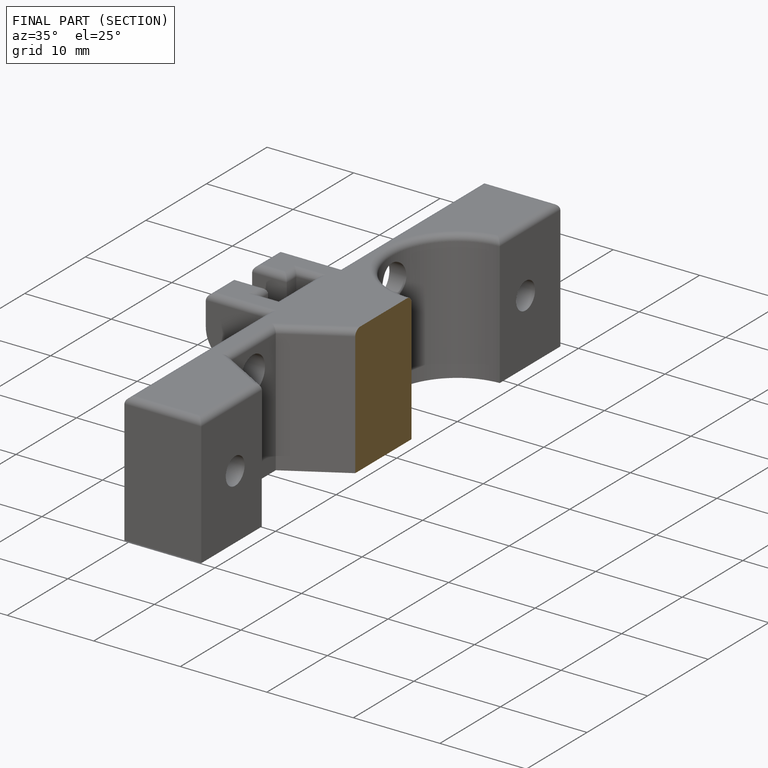
[diagram: finished part — half-section view (interior)]
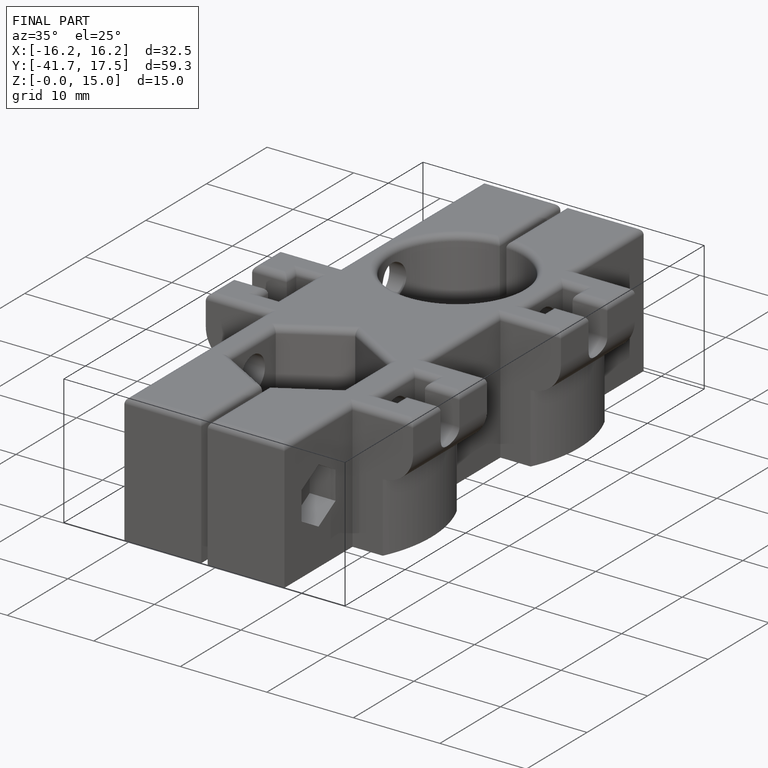
[diagram: finished part — iso view with bounding-box wireframe]
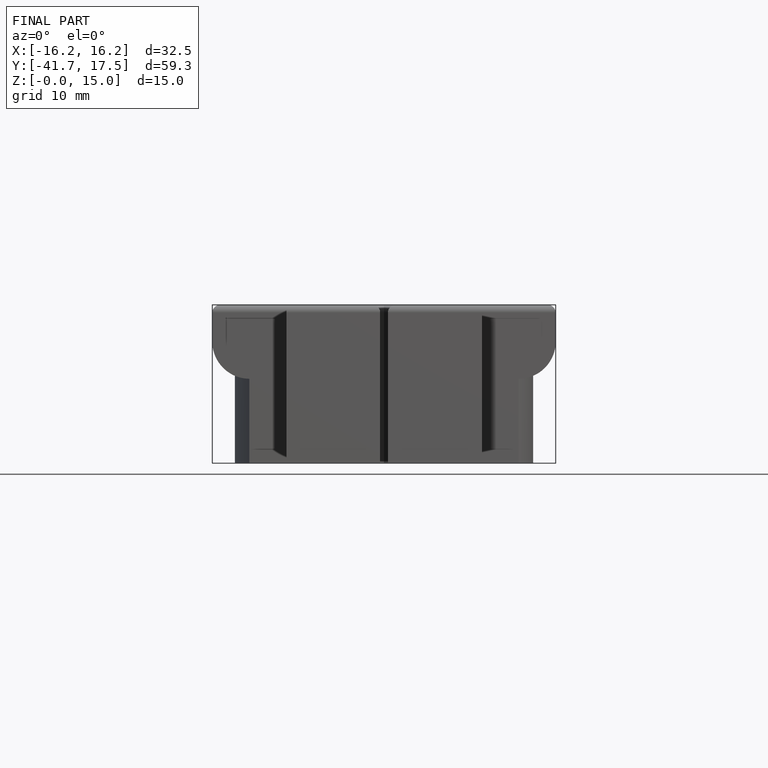
[diagram: finished part — front view with bounding-box wireframe]
